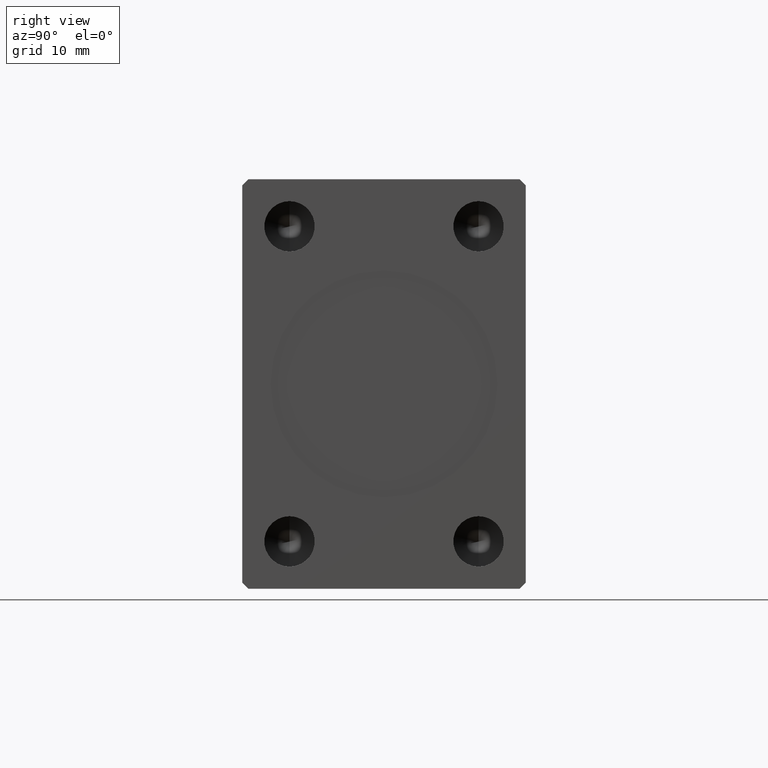
[diagram: clean part render]
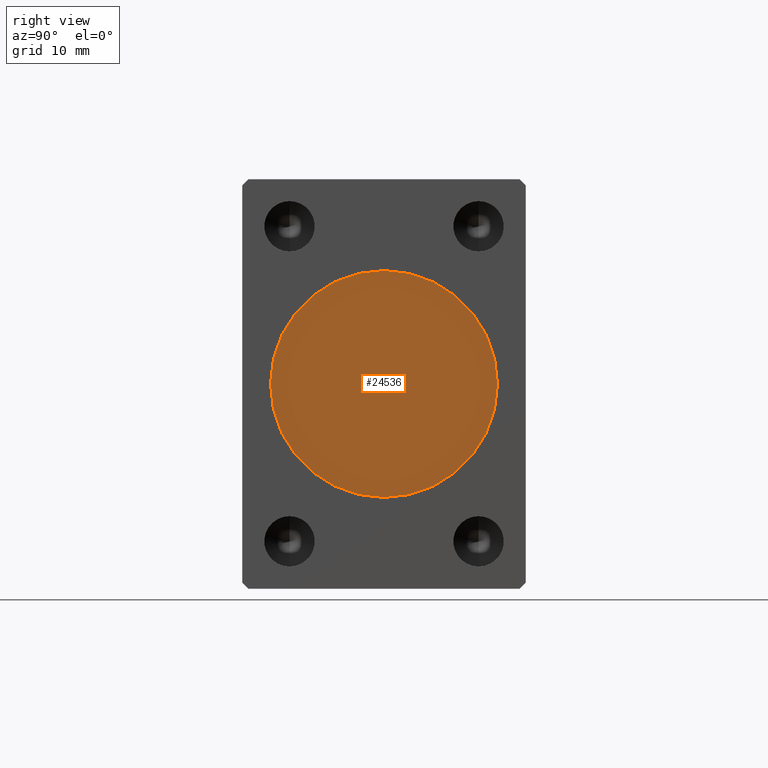
[diagram: same view with one face highlighted and labeled with its STEP entity id]
A machine part, right view. The second image highlights one B-rep face of the part: STEP entity #24536.
In plain terms, the highlighted planar face has unit normal (1, 0, 0).
Its self-contained STEP definition (entity closure, byte-faithful):
#1218 = PLANE ( 'NONE',  #3504 ) ;
#3504 = AXIS2_PLACEMENT_3D ( 'NONE', #34466, #14841, #42071 ) ;
#3929 = DIRECTION ( 'NONE',  ( 1.000000000000000000, 0.000000000000000000, 0.000000000000000000 ) ) ;
#3993 = AXIS2_PLACEMENT_3D ( 'NONE', #35701, #5104, #11811 ) ;
#4448 = ORIENTED_EDGE ( 'NONE', *, *, #5387, .T. ) ;
#5104 = DIRECTION ( 'NONE',  ( 1.000000000000000000, 0.000000000000000000, 0.000000000000000000 ) ) ;
#5387 = EDGE_CURVE ( 'NONE', #16579, #16888, #26449, .T. ) ;
#7888 = CARTESIAN_POINT ( 'NONE',  ( 77.79999999999999716, 0.000000000000000000, -18.00000000000000000 ) ) ;
#9157 = EDGE_LOOP ( 'NONE', ( #4448, #38662 ) ) ;
#11811 = DIRECTION ( 'NONE',  ( 0.000000000000000000, 0.000000000000000000, -1.000000000000000000 ) ) ;
#14219 = CARTESIAN_POINT ( 'NONE',  ( 77.79999999999999716, 0.000000000000000000, 0.000000000000000000 ) ) ;
#14841 = DIRECTION ( 'NONE',  ( 1.000000000000000000, 0.000000000000000000, 0.000000000000000000 ) ) ;
#16579 = VERTEX_POINT ( 'NONE', #7888 ) ;
#16888 = VERTEX_POINT ( 'NONE', #25245 ) ;
#24536 = ADVANCED_FACE ( 'NONE', ( #24665 ), #1218, .T. ) ;
#24665 = FACE_OUTER_BOUND ( 'NONE', #9157, .T. ) ;
#25245 = CARTESIAN_POINT ( 'NONE',  ( 77.79999999999999716, 2.204364238465235428E-15, 18.00000000000000000 ) ) ;
#26449 = CIRCLE ( 'NONE', #36414, 18.00000000000000000 ) ;
#30378 = CIRCLE ( 'NONE', #3993, 18.00000000000000000 ) ;
#31165 = DIRECTION ( 'NONE',  ( 0.000000000000000000, 0.000000000000000000, -1.000000000000000000 ) ) ;
#34466 = CARTESIAN_POINT ( 'NONE',  ( 77.79999999999999716, 0.000000000000000000, 0.000000000000000000 ) ) ;
#35701 = CARTESIAN_POINT ( 'NONE',  ( 77.79999999999999716, 0.000000000000000000, 0.000000000000000000 ) ) ;
#36414 = AXIS2_PLACEMENT_3D ( 'NONE', #14219, #3929, #31165 ) ;
#38445 = EDGE_CURVE ( 'NONE', #16888, #16579, #30378, .T. ) ;
#38662 = ORIENTED_EDGE ( 'NONE', *, *, #38445, .T. ) ;
#42071 = DIRECTION ( 'NONE',  ( 0.000000000000000000, 0.000000000000000000, -1.000000000000000000 ) ) ;